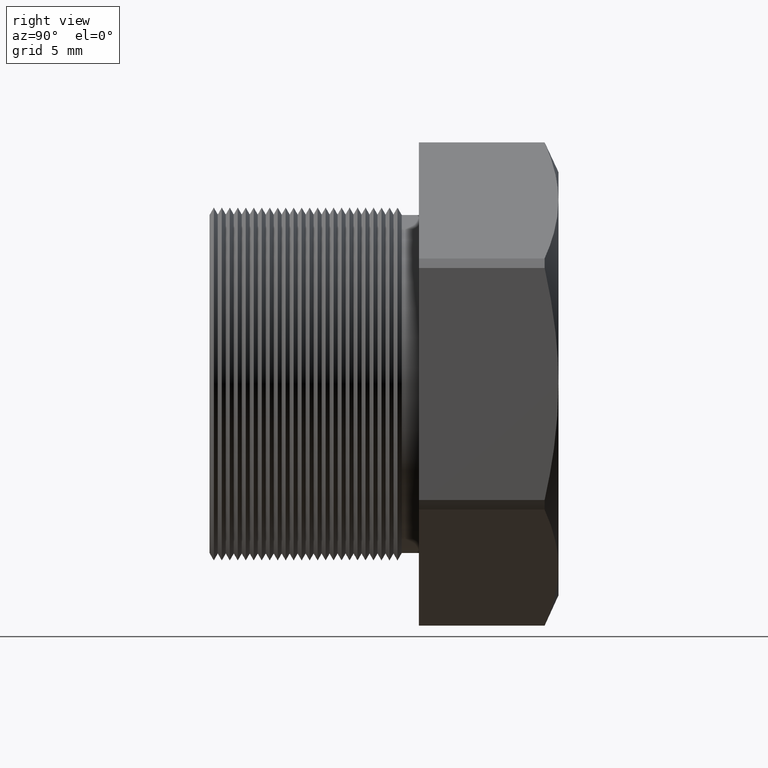
[diagram: clean part render]
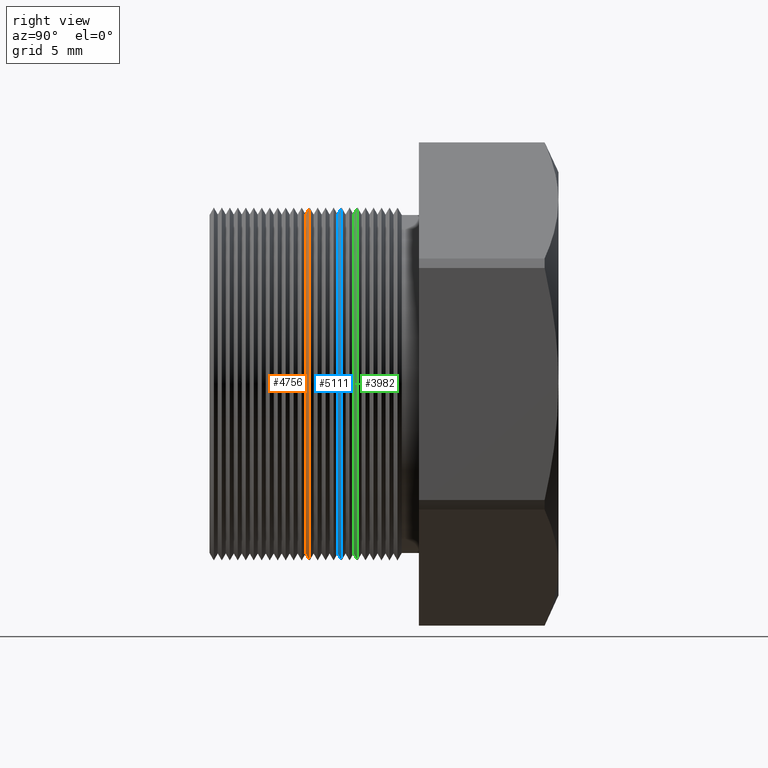
[diagram: same view with three faces highlighted in distinct colors, each labeled with its STEP entity id]
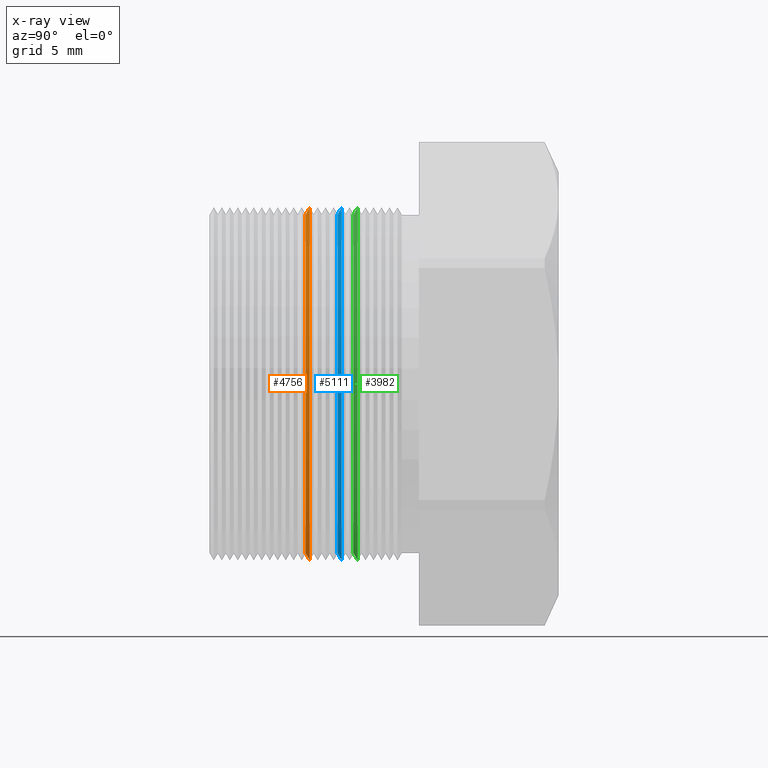
[diagram: x-ray of the same camera — body ghosted, the three highlighted faces saturated]
A machine part, right view with three faces highlighted in distinct colors.
The next image is the same camera in x-ray (body ghosted, the three faces saturated) — at least one of them is partly hidden behind the body in this view.
Their STEP definitions:

[orange] entity #4756 — the highlighted conical surface has half-angle 60 deg.
#4756 = ADVANCED_FACE ( 'NONE', ( #7080 ), #7079, .T. ) ;
#4764 = ORIENTED_EDGE ( 'NONE', *, *, #4768, .F. ) ;
#4766 = VERTEX_POINT ( 'NONE', #7121 ) ;
#4767 = EDGE_LOOP ( 'NONE', ( #4764, #4788, #4783, #4791 ) ) ;
#4768 = EDGE_CURVE ( 'NONE', #4772, #4766, #7120, .T. ) ;
#4772 = VERTEX_POINT ( 'NONE', #7104 ) ;
#4783 = ORIENTED_EDGE ( 'NONE', *, *, #4800, .F. ) ;
#4787 = VERTEX_POINT ( 'NONE', #7136 ) ;
#4788 = ORIENTED_EDGE ( 'NONE', *, *, #4798, .T. ) ;
#4791 = ORIENTED_EDGE ( 'NONE', *, *, #4809, .F. ) ;
#4798 = EDGE_CURVE ( 'NONE', #4772, #4787, #7178, .T. ) ;
#4800 = EDGE_CURVE ( 'NONE', #4811, #4787, #7174, .T. ) ;
#4809 = EDGE_CURVE ( 'NONE', #4766, #4811, #7214, .T. ) ;
#4811 = VERTEX_POINT ( 'NONE', #7205 ) ;
#7074 = DIRECTION ( 'NONE',  ( 0.0000000000000000000, 0.0000000000000000000, 1.000000000000000000 ) ) ;
#7075 = DIRECTION ( 'NONE',  ( -0.0000000000000000000, 1.000000000000000000, -0.0000000000000000000 ) ) ;
#7076 = CARTESIAN_POINT ( 'NONE',  ( 0.0000000000000000000, -0.05612510941705205900, 0.0000000000000000000 ) ) ;
#7077 = AXIS2_PLACEMENT_3D ( 'NONE', #7076, #7075, #7074 ) ;
#7079 = CONICAL_SURFACE ( 'NONE', #7077, 0.3287738815610546900, 1.047197551196595900 ) ;
#7080 = FACE_OUTER_BOUND ( 'NONE', #4767, .T. ) ;
#7104 = CARTESIAN_POINT ( 'NONE',  ( 3.947412019208833400E-017, -0.06356510941705204000, -0.3158874235527422400 ) ) ;
#7116 = DIRECTION ( 'NONE',  ( 0.0000000000000000000, 0.0000000000000000000, -1.000000000000000000 ) ) ;
#7117 = DIRECTION ( 'NONE',  ( 0.0000000000000000000, -1.000000000000000000, 0.0000000000000000000 ) ) ;
#7118 = CARTESIAN_POINT ( 'NONE',  ( 0.0000000000000000000, -0.06356510941705204000, 0.0000000000000000000 ) ) ;
#7119 = AXIS2_PLACEMENT_3D ( 'NONE', #7118, #7117, #7116 ) ;
#7120 = CIRCLE ( 'NONE', #7119, 0.3158874235527422400 ) ;
#7121 = CARTESIAN_POINT ( 'NONE',  ( 0.0000000000000000000, -0.06356510941705204000, 0.3158874235527422400 ) ) ;
#7136 = CARTESIAN_POINT ( 'NONE',  ( 0.0000000000000000000, -0.05612510941705205900, -0.3287738815610546900 ) ) ;
#7170 = DIRECTION ( 'NONE',  ( 0.0000000000000000000, 0.0000000000000000000, 1.000000000000000000 ) ) ;
#7171 = DIRECTION ( 'NONE',  ( -0.0000000000000000000, 1.000000000000000000, -0.0000000000000000000 ) ) ;
#7172 = CARTESIAN_POINT ( 'NONE',  ( 0.0000000000000000000, -0.05612510941705205900, 0.0000000000000000000 ) ) ;
#7173 = AXIS2_PLACEMENT_3D ( 'NONE', #7172, #7171, #7170 ) ;
#7174 = CIRCLE ( 'NONE', #7173, 0.3287738815610546900 ) ;
#7175 = DIRECTION ( 'NONE',  ( 1.060575238724905900E-016, 0.5000000000000016700, -0.8660254037844377100 ) ) ;
#7176 = VECTOR ( 'NONE', #7175, 39.37007874015748100 ) ;
#7177 = CARTESIAN_POINT ( 'NONE',  ( 4.026318816969966200E-017, -0.05612510941705205900, -0.3287738815610546900 ) ) ;
#7178 = LINE ( 'NONE', #7177, #7176 ) ;
#7205 = CARTESIAN_POINT ( 'NONE',  ( 4.026318816969966800E-017, -0.05612510941705205900, 0.3287738815610546900 ) ) ;
#7211 = DIRECTION ( 'NONE',  ( 0.0000000000000000000, 0.5000000000000016700, 0.8660254037844377100 ) ) ;
#7212 = VECTOR ( 'NONE', #7211, 39.37007874015748100 ) ;
#7213 = CARTESIAN_POINT ( 'NONE',  ( 0.0000000000000000000, -0.05612510941705205900, 0.3287738815610546900 ) ) ;
#7214 = LINE ( 'NONE', #7213, #7212 ) ;

[blue] entity #5111 — the highlighted conical surface has half-angle 60 deg.
#4807 = EDGE_LOOP ( 'NONE', ( #5095, #5094, #5084, #5076 ) ) ;
#4816 = VERTEX_POINT ( 'NONE', #7195 ) ;
#4825 = VERTEX_POINT ( 'NONE', #7238 ) ;
#4972 = EDGE_CURVE ( 'NONE', #4816, #4825, #8840, .T. ) ;
#5076 = ORIENTED_EDGE ( 'NONE', *, *, #5077, .F. ) ;
#5077 = EDGE_CURVE ( 'NONE', #4825, #5079, #9058, .T. ) ;
#5079 = VERTEX_POINT ( 'NONE', #9054 ) ;
#5084 = ORIENTED_EDGE ( 'NONE', *, *, #5086, .F. ) ;
#5086 = EDGE_CURVE ( 'NONE', #5079, #5091, #9046, .T. ) ;
#5087 = EDGE_CURVE ( 'NONE', #4816, #5091, #9040, .T. ) ;
#5091 = VERTEX_POINT ( 'NONE', #9090 ) ;
#5094 = ORIENTED_EDGE ( 'NONE', *, *, #5087, .T. ) ;
#5095 = ORIENTED_EDGE ( 'NONE', *, *, #4972, .F. ) ;
#5111 = ADVANCED_FACE ( 'NONE', ( #9072 ), #9128, .T. ) ;
#7195 = CARTESIAN_POINT ( 'NONE',  ( 3.947412019208833400E-017, -0.004045109417052044700, -0.3158874235527422400 ) ) ;
#7238 = CARTESIAN_POINT ( 'NONE',  ( 0.0000000000000000000, -0.004045109417052044700, 0.3158874235527422400 ) ) ;
#8836 = DIRECTION ( 'NONE',  ( 0.0000000000000000000, 0.0000000000000000000, -1.000000000000000000 ) ) ;
#8837 = DIRECTION ( 'NONE',  ( 0.0000000000000000000, -1.000000000000000000, 0.0000000000000000000 ) ) ;
#8838 = CARTESIAN_POINT ( 'NONE',  ( 0.0000000000000000000, -0.004045109417052044700, 0.0000000000000000000 ) ) ;
#8839 = AXIS2_PLACEMENT_3D ( 'NONE', #8838, #8837, #8836 ) ;
#8840 = CIRCLE ( 'NONE', #8839, 0.3158874235527422400 ) ;
#9037 = DIRECTION ( 'NONE',  ( 1.060575238724905900E-016, 0.5000000000000016700, -0.8660254037844377100 ) ) ;
#9038 = VECTOR ( 'NONE', #9037, 39.37007874015748100 ) ;
#9039 = CARTESIAN_POINT ( 'NONE',  ( 4.026318816969966200E-017, 0.003394890582947955300, -0.3287738815610546900 ) ) ;
#9040 = LINE ( 'NONE', #9039, #9038 ) ;
#9042 = DIRECTION ( 'NONE',  ( 0.0000000000000000000, 0.0000000000000000000, 1.000000000000000000 ) ) ;
#9043 = DIRECTION ( 'NONE',  ( -0.0000000000000000000, 1.000000000000000000, -0.0000000000000000000 ) ) ;
#9044 = CARTESIAN_POINT ( 'NONE',  ( 0.0000000000000000000, 0.003394890582947955300, 0.0000000000000000000 ) ) ;
#9045 = AXIS2_PLACEMENT_3D ( 'NONE', #9044, #9043, #9042 ) ;
#9046 = CIRCLE ( 'NONE', #9045, 0.3287738815610546900 ) ;
#9054 = CARTESIAN_POINT ( 'NONE',  ( 4.026318816969966800E-017, 0.003394890582947955300, 0.3287738815610546900 ) ) ;
#9055 = DIRECTION ( 'NONE',  ( 0.0000000000000000000, 0.5000000000000016700, 0.8660254037844377100 ) ) ;
#9056 = VECTOR ( 'NONE', #9055, 39.37007874015748100 ) ;
#9057 = CARTESIAN_POINT ( 'NONE',  ( 0.0000000000000000000, 0.003394890582947955300, 0.3287738815610546900 ) ) ;
#9058 = LINE ( 'NONE', #9057, #9056 ) ;
#9072 = FACE_OUTER_BOUND ( 'NONE', #4807, .T. ) ;
#9090 = CARTESIAN_POINT ( 'NONE',  ( 0.0000000000000000000, 0.003394890582947955300, -0.3287738815610546900 ) ) ;
#9123 = DIRECTION ( 'NONE',  ( 0.0000000000000000000, 0.0000000000000000000, 1.000000000000000000 ) ) ;
#9124 = DIRECTION ( 'NONE',  ( -0.0000000000000000000, 1.000000000000000000, -0.0000000000000000000 ) ) ;
#9125 = CARTESIAN_POINT ( 'NONE',  ( 0.0000000000000000000, 0.003394890582947955300, 0.0000000000000000000 ) ) ;
#9126 = AXIS2_PLACEMENT_3D ( 'NONE', #9125, #9124, #9123 ) ;
#9128 = CONICAL_SURFACE ( 'NONE', #9126, 0.3287738815610546900, 1.047197551196595900 ) ;

[green] entity #3982 — the highlighted conical surface has half-angle 60 deg.
#151 = ORIENTED_EDGE ( 'NONE', *, *, #5150, .F. ) ;
#190 = ORIENTED_EDGE ( 'NONE', *, *, #3718, .T. ) ;
#954 = EDGE_LOOP ( 'NONE', ( #151, #190, #2782, #2237 ) ) ;
#2237 = ORIENTED_EDGE ( 'NONE', *, *, #2244, .F. ) ;
#2244 = EDGE_CURVE ( 'NONE', #5152, #8990, #6426, .T. ) ;
#2782 = ORIENTED_EDGE ( 'NONE', *, *, #3004, .F. ) ;
#3004 = EDGE_CURVE ( 'NONE', #8990, #9012, #6421, .T. ) ;
#3718 = EDGE_CURVE ( 'NONE', #5151, #9012, #6415, .T. ) ;
#3982 = ADVANCED_FACE ( 'NONE', ( #6411 ), #6410, .T. ) ;
#4310 = CARTESIAN_POINT ( 'NONE',  ( 0.0000000000000000000, 0.03315489058294796000, -0.3287738815610546900 ) ) ;
#4311 = CARTESIAN_POINT ( 'NONE',  ( 4.026318816969966800E-017, 0.03315489058294796000, 0.3287738815610546900 ) ) ;
#5150 = EDGE_CURVE ( 'NONE', #5151, #5152, #9177, .T. ) ;
#5151 = VERTEX_POINT ( 'NONE', #9172 ) ;
#5152 = VERTEX_POINT ( 'NONE', #9171 ) ;
#6406 = DIRECTION ( 'NONE',  ( 0.0000000000000000000, 0.0000000000000000000, 1.000000000000000000 ) ) ;
#6407 = DIRECTION ( 'NONE',  ( -0.0000000000000000000, 1.000000000000000000, -0.0000000000000000000 ) ) ;
#6408 = CARTESIAN_POINT ( 'NONE',  ( 0.0000000000000000000, 0.03315489058294796000, 0.0000000000000000000 ) ) ;
#6409 = AXIS2_PLACEMENT_3D ( 'NONE', #6408, #6407, #6406 ) ;
#6410 = CONICAL_SURFACE ( 'NONE', #6409, 0.3287738815610546900, 1.047197551196595900 ) ;
#6411 = FACE_OUTER_BOUND ( 'NONE', #954, .T. ) ;
#6412 = DIRECTION ( 'NONE',  ( 1.060575238724905900E-016, 0.5000000000000016700, -0.8660254037844377100 ) ) ;
#6413 = VECTOR ( 'NONE', #6412, 39.37007874015748100 ) ;
#6414 = CARTESIAN_POINT ( 'NONE',  ( 4.026318816969966200E-017, 0.03315489058294796000, -0.3287738815610546900 ) ) ;
#6415 = LINE ( 'NONE', #6414, #6413 ) ;
#6417 = DIRECTION ( 'NONE',  ( 0.0000000000000000000, 0.0000000000000000000, 1.000000000000000000 ) ) ;
#6418 = DIRECTION ( 'NONE',  ( -0.0000000000000000000, 1.000000000000000000, -0.0000000000000000000 ) ) ;
#6419 = CARTESIAN_POINT ( 'NONE',  ( 0.0000000000000000000, 0.03315489058294796000, 0.0000000000000000000 ) ) ;
#6420 = AXIS2_PLACEMENT_3D ( 'NONE', #6419, #6418, #6417 ) ;
#6421 = CIRCLE ( 'NONE', #6420, 0.3287738815610546900 ) ;
#6423 = DIRECTION ( 'NONE',  ( 0.0000000000000000000, 0.5000000000000016700, 0.8660254037844377100 ) ) ;
#6424 = VECTOR ( 'NONE', #6423, 39.37007874015748100 ) ;
#6425 = CARTESIAN_POINT ( 'NONE',  ( 0.0000000000000000000, 0.03315489058294796000, 0.3287738815610546900 ) ) ;
#6426 = LINE ( 'NONE', #6425, #6424 ) ;
#8990 = VERTEX_POINT ( 'NONE', #4311 ) ;
#9012 = VERTEX_POINT ( 'NONE', #4310 ) ;
#9171 = CARTESIAN_POINT ( 'NONE',  ( 0.0000000000000000000, 0.02571489058294795400, 0.3158874235527422400 ) ) ;
#9172 = CARTESIAN_POINT ( 'NONE',  ( 3.947412019208833400E-017, 0.02571489058294795400, -0.3158874235527422400 ) ) ;
#9173 = DIRECTION ( 'NONE',  ( 0.0000000000000000000, 0.0000000000000000000, -1.000000000000000000 ) ) ;
#9174 = DIRECTION ( 'NONE',  ( 0.0000000000000000000, -1.000000000000000000, 0.0000000000000000000 ) ) ;
#9175 = CARTESIAN_POINT ( 'NONE',  ( 0.0000000000000000000, 0.02571489058294795400, 0.0000000000000000000 ) ) ;
#9176 = AXIS2_PLACEMENT_3D ( 'NONE', #9175, #9174, #9173 ) ;
#9177 = CIRCLE ( 'NONE', #9176, 0.3158874235527422400 ) ;